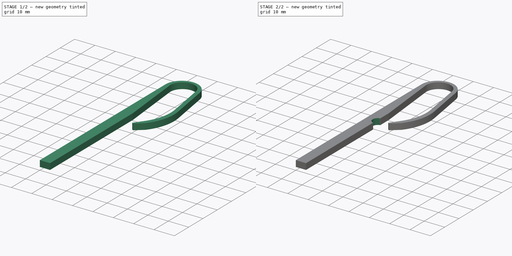
[diagram: build sequence overview — one tinted view per stage of 2, left to right]
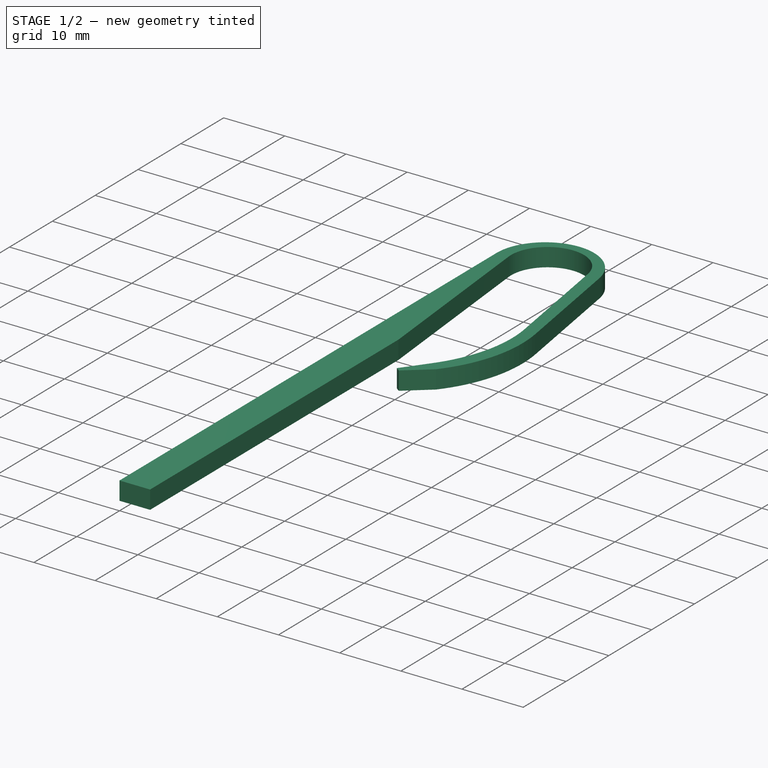
[diagram: stage 1 of 2 — iso view after this stage's code; geometry added in this stage tinted green]
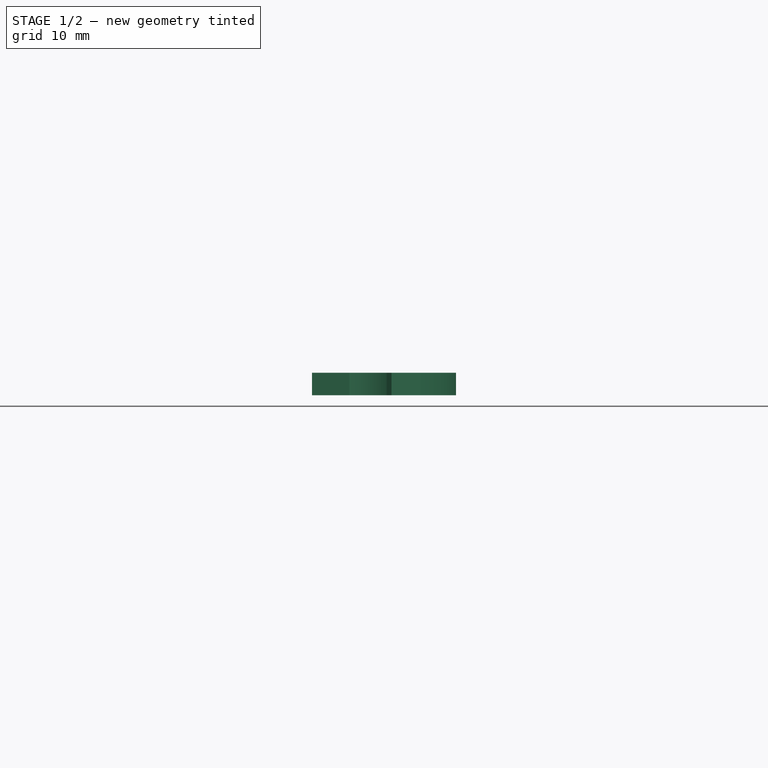
[diagram: stage 1 of 2 — front view after this stage's code; geometry added in this stage tinted green]
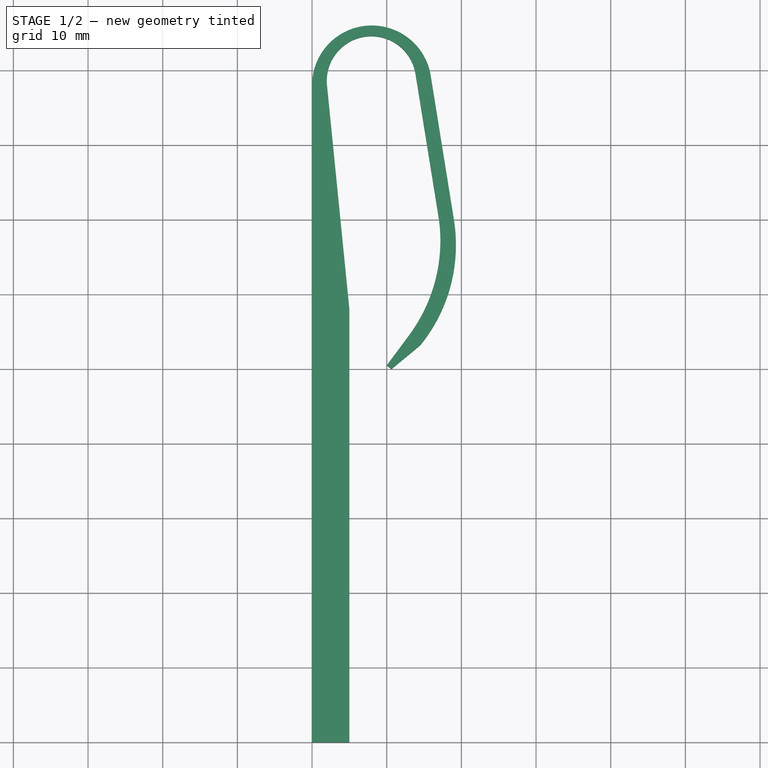
[diagram: stage 1 of 2 — top view after this stage's code; geometry added in this stage tinted green]
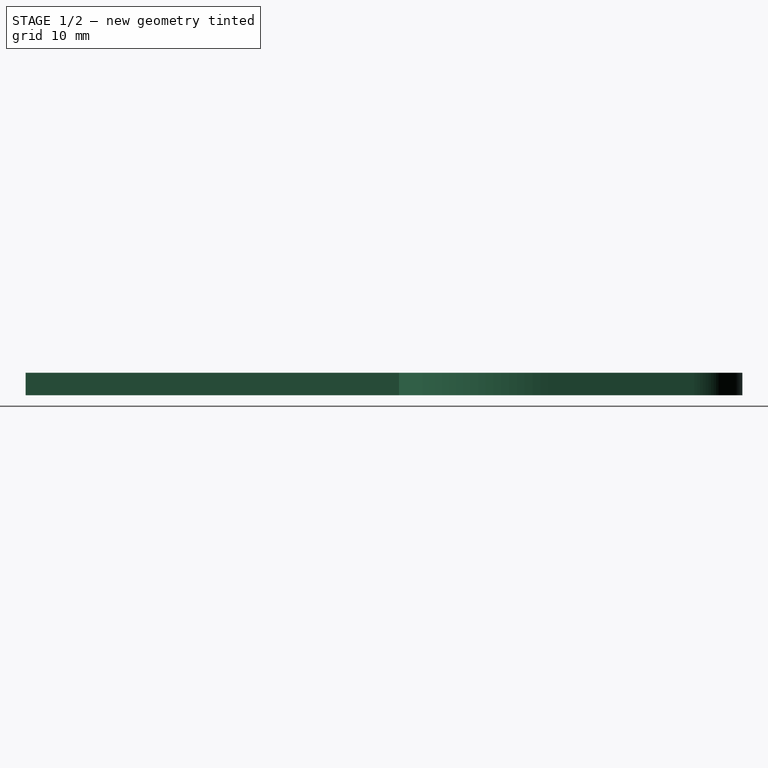
[diagram: stage 1 of 2 — right view after this stage's code; geometry added in this stage tinted green]
FCSTD DOCUMENT  (FreeCAD 0.16RUnknown)
Label: bearded-needle
License: All rights reserved
LicenseURL: http://en.wikipedia.org/wiki/All_rights_reserved
objects: Sketcher::SketchObject×2, PartDesign::Pad×1, PartDesign::Pocket×1
note: 6 computed .brp shape members not serialized (recipe doc carries the construction recipe); baked Part::Feature solids carry a one-line shape summary decoded from their .brp

FEATURE [Sketcher::SketchObject] Sketch  label="base-s"
  sketch-geometry (17):
    g0: LineSegment StartX=0 StartY=0 StartZ=0 EndX=0 EndY=88 EndZ=0
    g1: ArcOfCircle CenterX=8 CenterY=88 CenterZ=0 NormalX=0 NormalY=0 NormalZ=1 Radius=8 StartAngle=0.194483 EndAngle=3.1416
    g2: LineSegment StartX=15.8492 StartY=89.5461 StartZ=0 EndX=19 EndY=70 EndZ=0
    g3: ArcOfCircle CenterX=-2.00853 CenterY=66.6134 CenterZ=0 NormalX=0 NormalY=0 NormalZ=1 Radius=21.2797 StartAngle=5.60018 EndAngle=6.44301
    g4: LineSegment StartX=14.4977 StartY=53.1832 StartZ=0 EndX=10.642 EndY=50 EndZ=0
    g5: LineSegment StartX=10.642 StartY=50 StartZ=0 EndX=10 EndY=50.4773 EndZ=0
    g6: LineSegment StartX=10 StartY=50.4773 StartZ=0 EndX=12.9834 EndY=54.4897 EndZ=0
    g7: ArcOfCircle CenterX=-4.093 CenterY=67.1871 CenterZ=0 NormalX=0 NormalY=0 NormalZ=1 Radius=21.2797 StartAngle=5.64382 EndAngle=6.41576
    g8: LineSegment StartX=17 StartY=70 StartZ=0 EndX=13.8492 EndY=89.5461 EndZ=0
    g9: ArcOfCircle CenterX=7.94785 CenterY=88.5948 CenterZ=0 NormalX=0 NormalY=0 NormalZ=1 Radius=5.97752 StartAngle=0.159824 EndAngle=3.24127
    g10: LineSegment StartX=2 StartY=88 StartZ=0 EndX=5 EndY=58 EndZ=0
    g11: LineSegment StartX=5 StartY=58 StartZ=0 EndX=5 EndY=0 EndZ=0
    g12: LineSegment StartX=5 StartY=0 StartZ=0 EndX=0 EndY=0 EndZ=0
    g13: LineSegment [constr] StartX=2 StartY=88 StartZ=0 EndX=0 EndY=88 EndZ=0
    g14: LineSegment [constr] StartX=13.8492 StartY=89.5461 StartZ=0 EndX=15.8492 EndY=89.5461 EndZ=0
    g15: LineSegment [constr] StartX=17 StartY=70 StartZ=0 EndX=19 EndY=70 EndZ=0
    g16: LineSegment [constr] StartX=12.9834 StartY=54.4897 StartZ=0 EndX=14.4977 EndY=53.1832 EndZ=0
  constraints (50):
    c: PointOnObject(g0,g-2)
    c: Vertical(g0)
    c: Coincident(g1,g0)
    c: Coincident(g2,g1)
    c: Coincident(g3,g2)
    c: Coincident(g4,g3)
    c: Coincident(g4,g5)
    c: Coincident(g5,g6)
    c: Tangent(g6,g7) = -1.5708
    c: Coincident(g7,g8)
    c: Tangent(g8,g9) = -1.5708
    c: Coincident(g9,g10)
    c: Coincident(g10,g11)
    c: Vertical(g11)
    c: Coincident(g12,g11)
    c: Coincident(g12,g-1)
    c: Coincident(g0,g-1)
    c: Horizontal(g12)
    c: Coincident(g13,g9)
    c: Coincident(g13,g0)
    c: Horizontal(g13)
    c: Coincident(g14,g8)
    c: Coincident(g14,g1)
    c: Equal(g14,g13)
    c: Horizontal(g14)
    c: Tangent(g0,g1)
    c: Tangent(g10,g9)
    c: DistanceX(g10) = 5
    c: Radius(g1) = 8
    c: Coincident(g15,g7)
    c: Coincident(g15,g2)
    c: Equal(g14,g13)
    c: DistanceX(g13,g13) = 2
    c: Equal(g15,g14)
    c: DistanceY(g0,g0) = 88
    c: Parallel(g8,g2)
    c: Distance(g5) = 0.8
    c: Coincident(g16,g6)
    c: Coincident(g16,g3)
    c: Equal(g4,g6)
    c: Distance(g6) = 5
    c: Perpendicular(g5,g6)
    c: Equal(g16,g15)
    c: DistanceY(g10,g9) = 30
    c: DistanceX(g5,g7) = 7
    c: DistanceY(g4,g7) = 20
    c: Tangent(g3,g2)
    c: Equal(g3,g7)
    c: DistanceX(g10,g5) = 5
    c: DistanceY(g4,g10) = 8
FEATURE [PartDesign::Pad] Pad
  Length = 3
  Length2 = 100
  Sketch = -> Sketch
  Type = 0
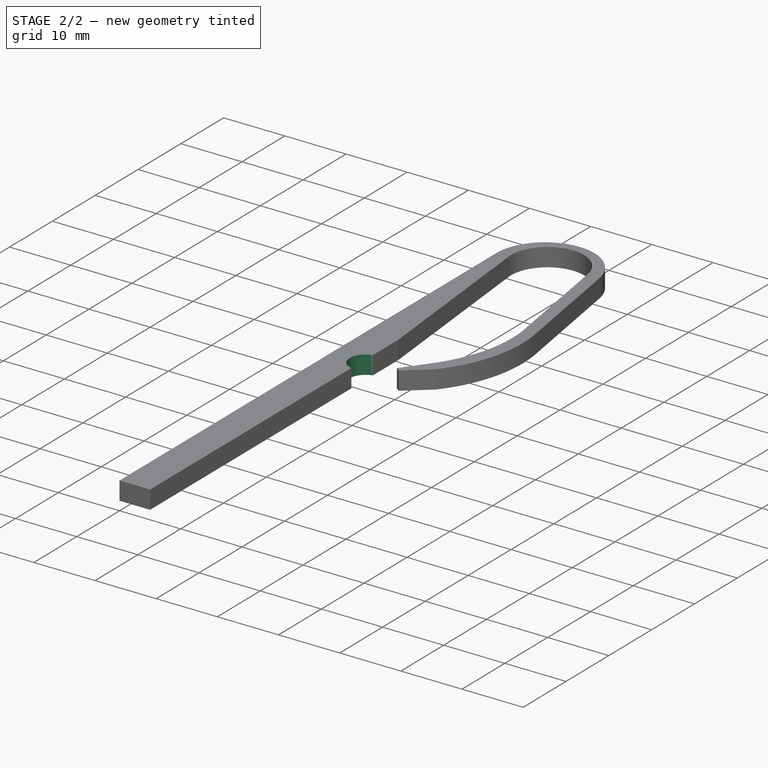
[diagram: stage 2 of 2 — iso view after this stage's code; geometry added in this stage tinted green]
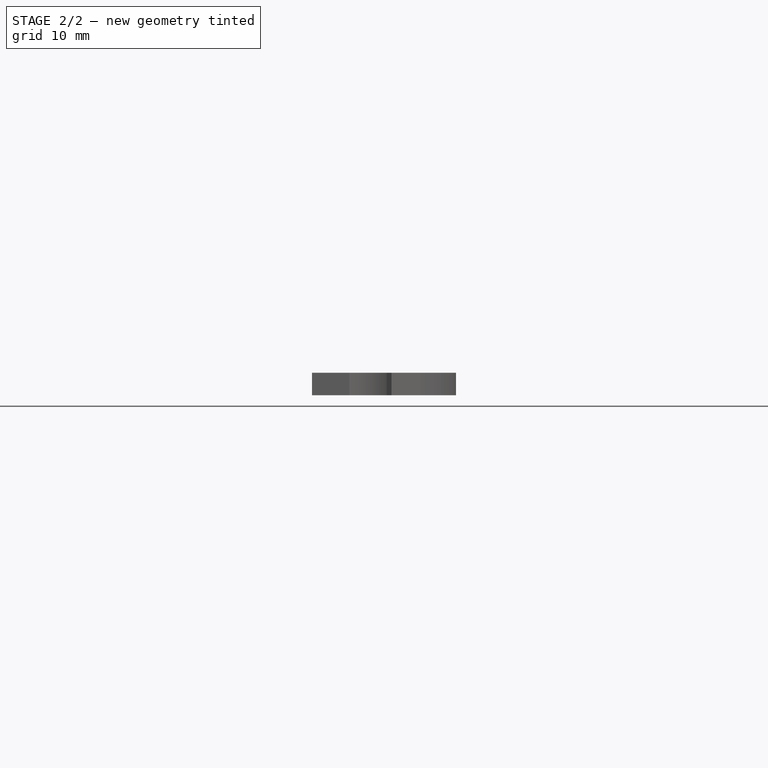
[diagram: stage 2 of 2 — front view after this stage's code; geometry added in this stage tinted green]
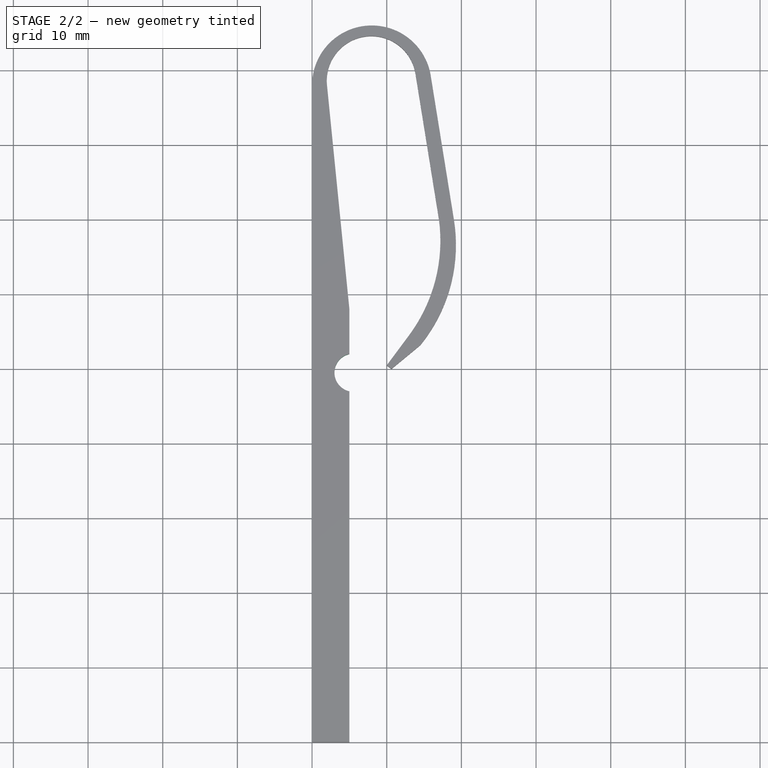
[diagram: stage 2 of 2 — top view after this stage's code; geometry added in this stage tinted green]
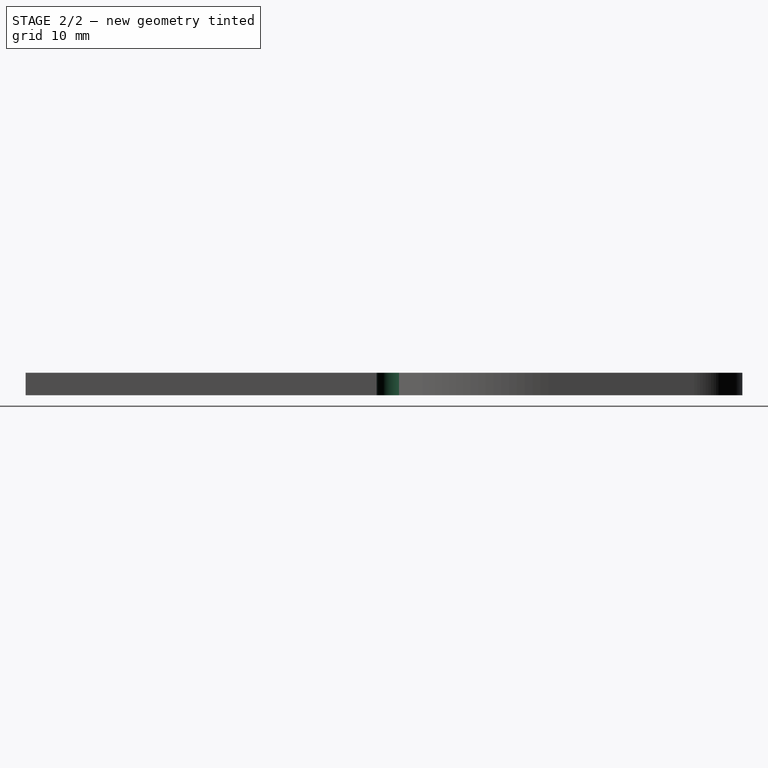
[diagram: stage 2 of 2 — right view after this stage's code; geometry added in this stage tinted green]
FEATURE [Sketcher::SketchObject] Sketch001  label="pocket"
  ExternalGeometry = -> [Pad]
  Placement = pos=(0,0,3) rot=(0,0,1;0rad)
  Support = -> Pad [Face15]
  sketch-geometry (4):
    g0: ArcOfCircle CenterX=5.5625 CenterY=49.5 CenterZ=0 NormalX=0 NormalY=0 NormalZ=1 Radius=2.5625 StartAngle=1.79211 EndAngle=4.49107
    g1: LineSegment StartX=5 StartY=52 StartZ=0 EndX=5 EndY=47 EndZ=0
    g2: GeomPoint [constr] X=3 Y=49.5 Z=0
    g3: LineSegment [constr] StartX=3 StartY=49.5 StartZ=0 EndX=5 EndY=49.5 EndZ=0
  constraints (12):
    c: PointOnObject(g0,g-3)
    c: Coincident(g1,g0)
    c: Coincident(g1,g0)
    c: Vertical(g1)
    c: DistanceY(g0,g0) = 5
    c: DistanceY(g0,g-3) = 6
    c: PointOnObject(g2,g0)
    c: Coincident(g3,g2)
    c: PointOnObject(g3,g-3)
    c: Horizontal(g3)
    c: Symmetric(g0,g0,g3)
    c: DistanceX(g3,g3) = 2
FEATURE [PartDesign::Pocket] Pocket
  Length = 5
  Sketch = -> Sketch001
  Type = 1
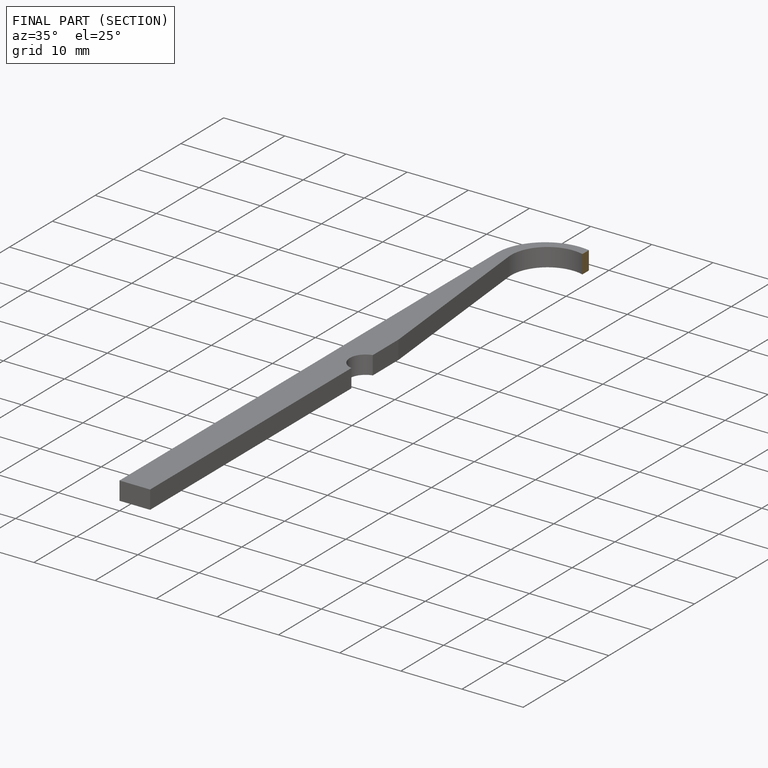
[diagram: finished part — half-section view (interior)]
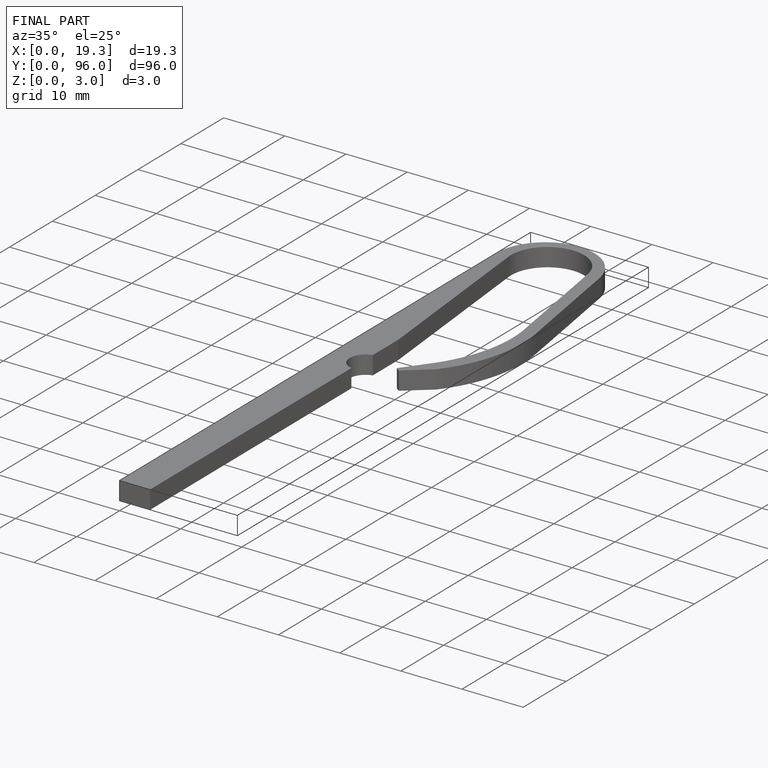
[diagram: finished part — iso view with bounding-box wireframe]
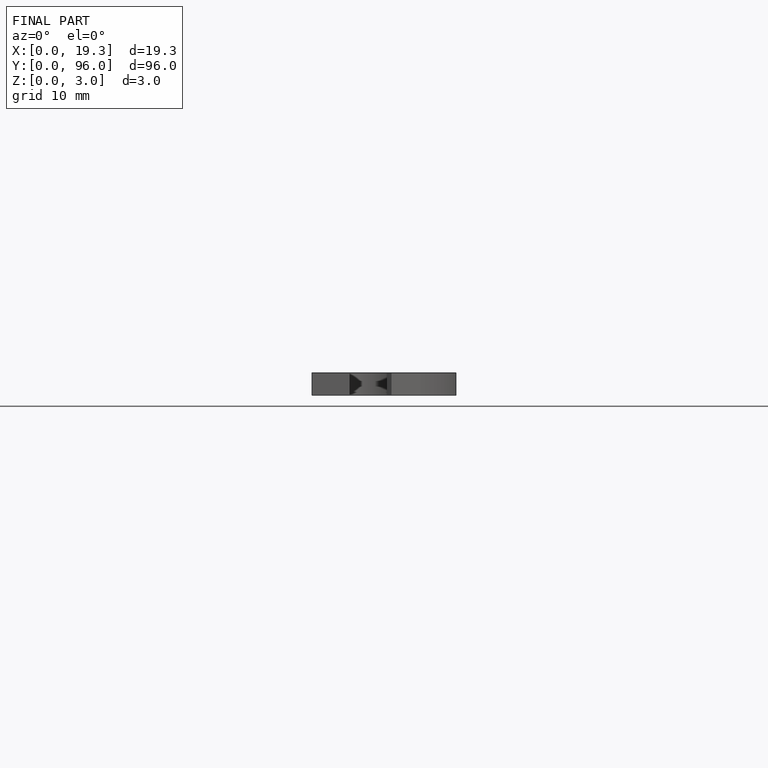
[diagram: finished part — front view with bounding-box wireframe]
